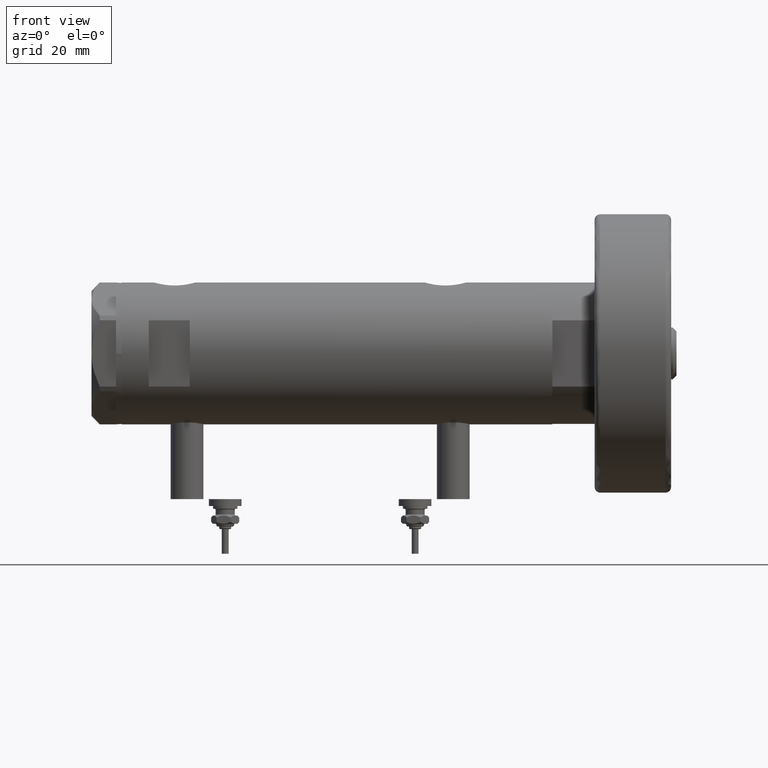
[diagram: clean part render]
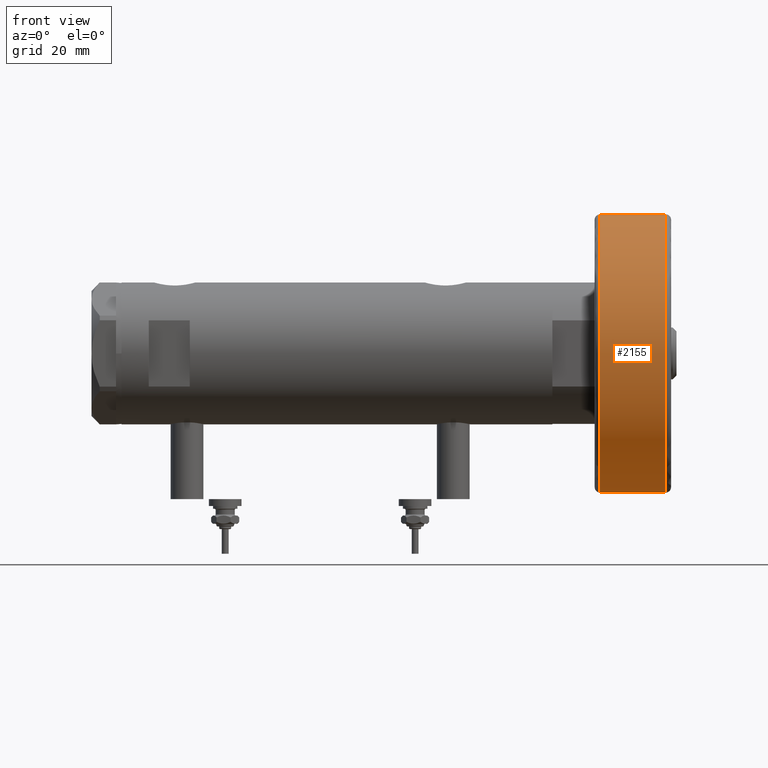
[diagram: same view with one face highlighted and labeled with its STEP entity id]
A machine part, front view. The second image highlights one B-rep face of the part: STEP entity #2155.
In plain terms, the highlighted cylindrical surface (partial cylindrical patch) has radius 51 mm, axis along (-1, -0, 0).
Its self-contained STEP definition (entity closure, byte-faithful):
#484 = DIRECTION ( 'NONE',  ( -0.000000000000000000, -0.000000000000000000, -1.000000000000000000 ) ) ;
#800 = DIRECTION ( 'NONE',  ( -0.000000000000000000, -0.000000000000000000, -1.000000000000000000 ) ) ;
#905 = VERTEX_POINT ( 'NONE', #3330 ) ;
#958 = VERTEX_POINT ( 'NONE', #5804 ) ;
#1001 = CARTESIAN_POINT ( 'NONE',  ( 50.99999999999999289, 6.245698675651499656E-15, 28.00000000000000000 ) ) ;
#1092 = VERTEX_POINT ( 'NONE', #1364 ) ;
#1364 = CARTESIAN_POINT ( 'NONE',  ( -50.99999999999999289, 0.000000000000000000, 1.999999999999998224 ) ) ;
#1488 = EDGE_CURVE ( 'NONE', #5722, #958, #2569, .T. ) ;
#1498 = ORIENTED_EDGE ( 'NONE', *, *, #2067, .T. ) ;
#1557 = AXIS2_PLACEMENT_3D ( 'NONE', #3895, #3399, #5967 ) ;
#1614 = CARTESIAN_POINT ( 'NONE',  ( 0.000000000000000000, 0.000000000000000000, 28.00000000000000000 ) ) ;
#1720 = ORIENTED_EDGE ( 'NONE', *, *, #6502, .T. ) ;
#1735 = VECTOR ( 'NONE', #484, 1000.000000000000000 ) ;
#1988 = VECTOR ( 'NONE', #6119, 1000.000000000000000 ) ;
#2026 = CARTESIAN_POINT ( 'NONE',  ( 50.99999999999999289, 6.245698675651499656E-15, 26.00000000000000355 ) ) ;
#2067 = EDGE_CURVE ( 'NONE', #905, #1092, #5672, .T. ) ;
#2125 = FACE_OUTER_BOUND ( 'NONE', #5551, .T. ) ;
#2155 = ADVANCED_FACE ( 'NONE', ( #2125 ), #6253, .T. ) ;
#2569 = LINE ( 'NONE', #1001, #1988 ) ;
#2804 = AXIS2_PLACEMENT_3D ( 'NONE', #1614, #3667, #5739 ) ;
#3090 = AXIS2_PLACEMENT_3D ( 'NONE', #5376, #800, #4257 ) ;
#3330 = CARTESIAN_POINT ( 'NONE',  ( -50.99999999999999289, 0.000000000000000000, 26.00000000000000355 ) ) ;
#3399 = DIRECTION ( 'NONE',  ( 0.000000000000000000, 0.000000000000000000, 1.000000000000000000 ) ) ;
#3667 = DIRECTION ( 'NONE',  ( -0.000000000000000000, -0.000000000000000000, -1.000000000000000000 ) ) ;
#3895 = CARTESIAN_POINT ( 'NONE',  ( 0.000000000000000000, 0.000000000000000000, 1.999999999999998224 ) ) ;
#4257 = DIRECTION ( 'NONE',  ( 1.000000000000000000, 0.000000000000000000, 0.000000000000000000 ) ) ;
#4529 = EDGE_CURVE ( 'NONE', #1092, #958, #4787, .T. ) ;
#4609 = CARTESIAN_POINT ( 'NONE',  ( -50.99999999999999289, 0.000000000000000000, 28.00000000000000000 ) ) ;
#4642 = ORIENTED_EDGE ( 'NONE', *, *, #1488, .F. ) ;
#4787 = CIRCLE ( 'NONE', #1557, 50.99999999999999289 ) ;
#4845 = ORIENTED_EDGE ( 'NONE', *, *, #4529, .T. ) ;
#5376 = CARTESIAN_POINT ( 'NONE',  ( 0.000000000000000000, 0.000000000000000000, 26.00000000000000355 ) ) ;
#5551 = EDGE_LOOP ( 'NONE', ( #4642, #1720, #1498, #4845 ) ) ;
#5672 = LINE ( 'NONE', #4609, #1735 ) ;
#5722 = VERTEX_POINT ( 'NONE', #2026 ) ;
#5739 = DIRECTION ( 'NONE',  ( -1.000000000000000000, 0.000000000000000000, 0.000000000000000000 ) ) ;
#5804 = CARTESIAN_POINT ( 'NONE',  ( 50.99999999999999289, 6.245698675651499656E-15, 1.999999999999998224 ) ) ;
#5967 = DIRECTION ( 'NONE',  ( 1.000000000000000000, 0.000000000000000000, 0.000000000000000000 ) ) ;
#6015 = CIRCLE ( 'NONE', #3090, 50.99999999999999289 ) ;
#6119 = DIRECTION ( 'NONE',  ( -0.000000000000000000, -0.000000000000000000, -1.000000000000000000 ) ) ;
#6253 = CYLINDRICAL_SURFACE ( 'NONE', #2804, 50.99999999999999289 ) ;
#6502 = EDGE_CURVE ( 'NONE', #5722, #905, #6015, .T. ) ;